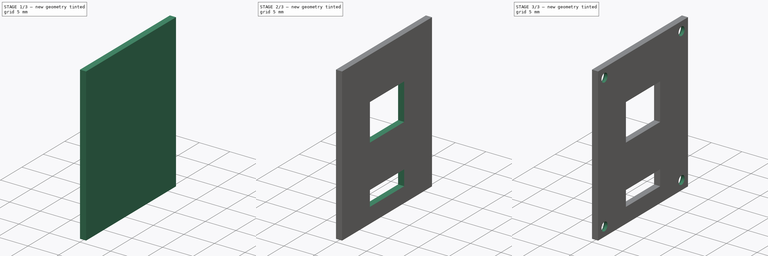
[diagram: build sequence overview — one tinted view per stage of 3, left to right]
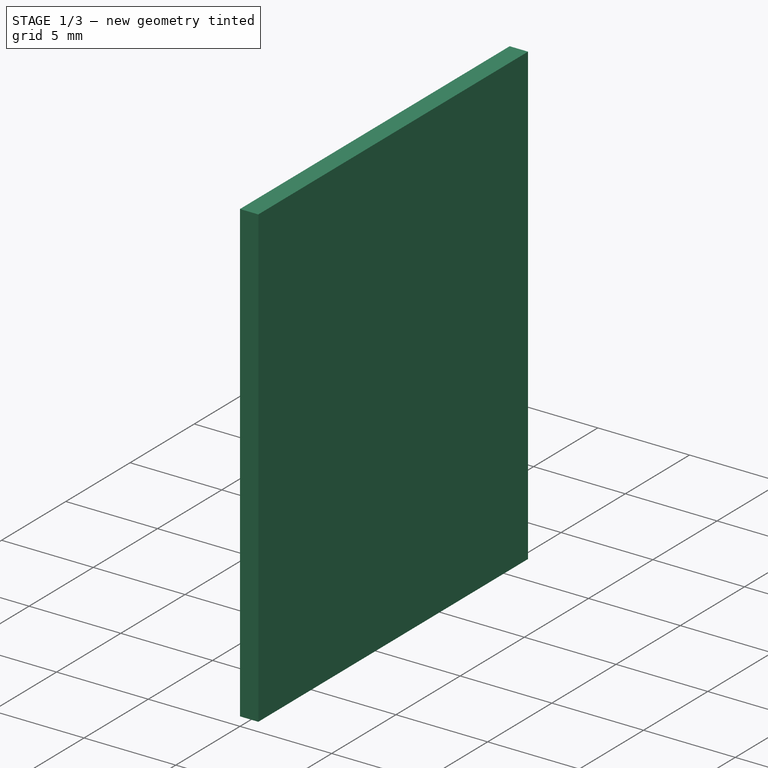
[diagram: stage 1 of 3 — iso view after this stage's code; geometry added in this stage tinted green]
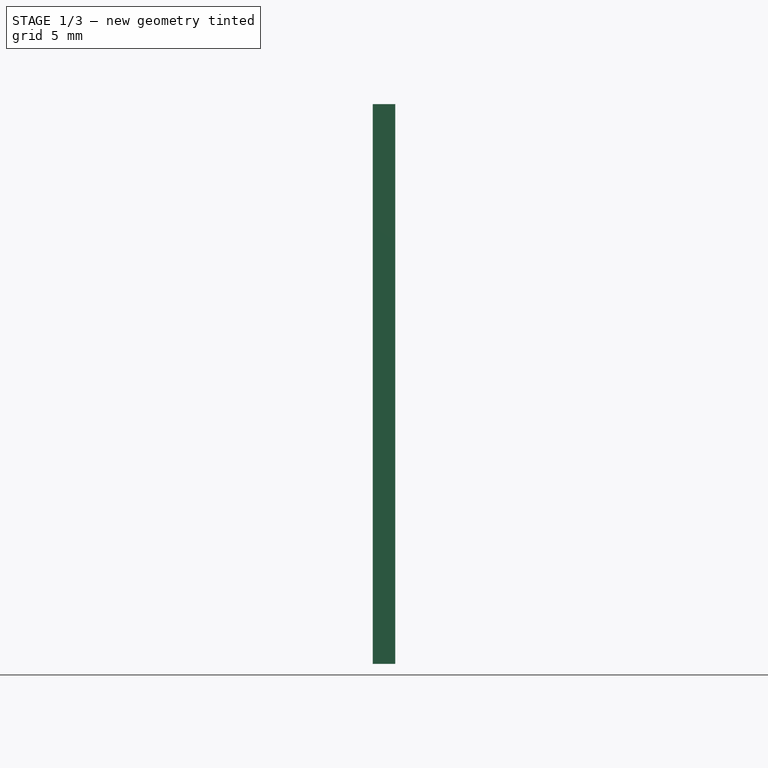
[diagram: stage 1 of 3 — front view after this stage's code; geometry added in this stage tinted green]
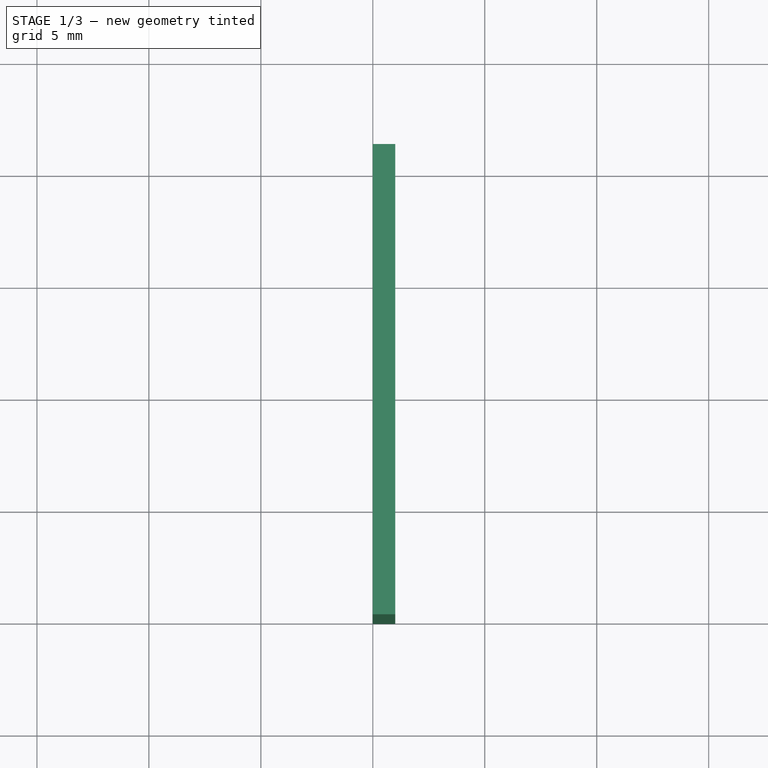
[diagram: stage 1 of 3 — top view after this stage's code; geometry added in this stage tinted green]
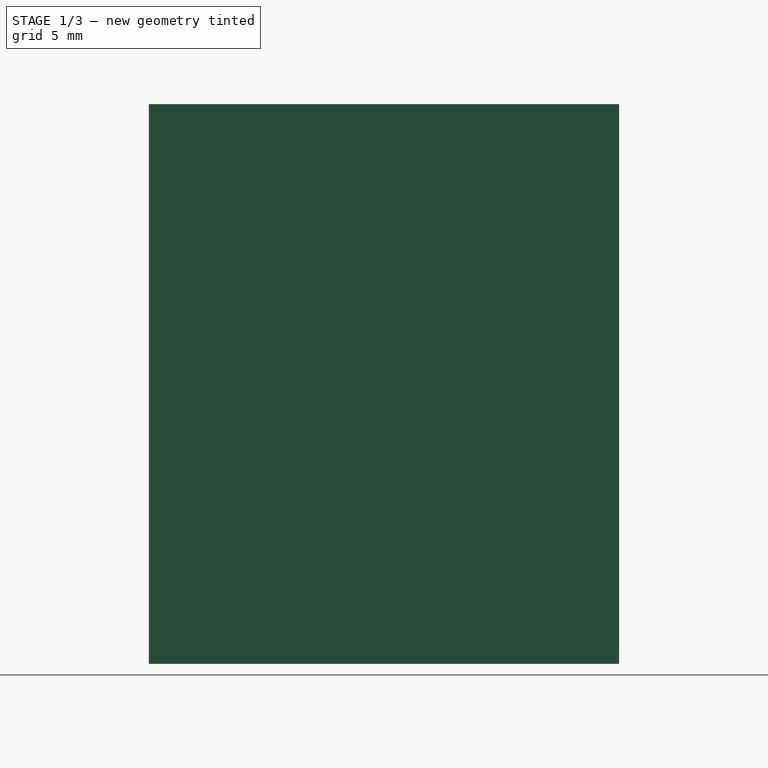
[diagram: stage 1 of 3 — right view after this stage's code; geometry added in this stage tinted green]
FCSTD DOCUMENT  (FreeCAD 0.19R)
Label: cover
License: All rights reserved
LicenseURL: http://en.wikipedia.org/wiki/All_rights_reserved
objects: Sketcher::SketchObject×4, PartDesign::Pocket×3, PartDesign::Pad×1, PartDesign::Chamfer×1, PartDesign::Body×1
note: 15 computed .brp shape members not serialized (recipe doc carries the construction recipe); baked Part::Feature solids carry a one-line shape summary decoded from their .brp

FEATURE [Sketcher::SketchObject] Sketch  label="base_pad_sketch"
  FullyConstrained = true
  MapMode = 5
  Support = -> [XY_Plane]
  sketch-geometry (4):
    g0: LineSegment StartX=0 StartY=0 StartZ=0 EndX=63.5 EndY=0 EndZ=0
    g1: LineSegment StartX=63.5 StartY=0 StartZ=0 EndX=63.5 EndY=21 EndZ=0
    g2: LineSegment StartX=63.5 StartY=21 StartZ=0 EndX=0 EndY=21 EndZ=0
    g3: LineSegment StartX=0 StartY=21 StartZ=0 EndX=0 EndY=0 EndZ=0
  constraints (11):
    c: Coincident(g0,g1)
    c: Coincident(g1,g2)
    c: Coincident(g2,g3)
    c: Coincident(g3,g0)
    c: Horizontal(g0)
    c: Horizontal(g2)
    c: Vertical(g1)
    c: Vertical(g3)
    c: Coincident(g0,g-1)
    c: Distance(g2) = 63.5
    c: Distance(g1) = 21
FEATURE [PartDesign::Pad] Pad  label="base_pad"
  Direction = (1,1,1)
  Length = 25
  Length2 = 100
  Profile = -> Sketch
  Type = 0
FEATURE [Sketcher::SketchObject] Sketch001  label="base_pocket_sketch"
  FullyConstrained = true
  MapMode = 5
  Placement = pos=(0,0,25) rot=(0,0,1;0rad)
  Support = -> [Pad]
  sketch-geometry (4):
    g0: LineSegment StartX=1 StartY=21 StartZ=0 EndX=64 EndY=21 EndZ=0
    g1: LineSegment StartX=64 StartY=21 StartZ=0 EndX=64 EndY=0 EndZ=0
    g2: LineSegment StartX=64 StartY=0 StartZ=0 EndX=1 EndY=0 EndZ=0
    g3: LineSegment StartX=1 StartY=0 StartZ=0 EndX=1 EndY=21 EndZ=0
  constraints (12):
    c: Coincident(g0,g1)
    c: Coincident(g1,g2)
    c: Coincident(g2,g3)
    c: Coincident(g3,g0)
    c: Horizontal(g0)
    c: Horizontal(g2)
    c: Vertical(g1)
    c: Vertical(g3)
    c: Distance(g0) = 63
    c: Distance(g1) = 21
    c: DistanceX(g-2,g2) = 1
    c: PointOnObject(g2,g-1)
FEATURE [PartDesign::Pocket] Pocket  label="base_pocket"
  BaseFeature = -> Pad
  Length = 25
  Length2 = 100
  Profile = -> Sketch001
  Type = 0
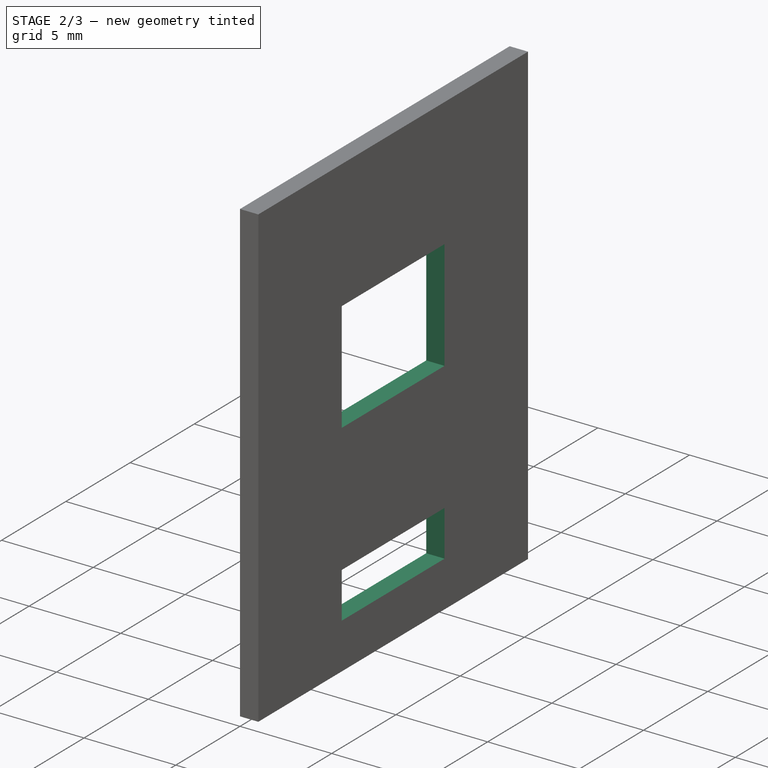
[diagram: stage 2 of 3 — iso view after this stage's code; geometry added in this stage tinted green]
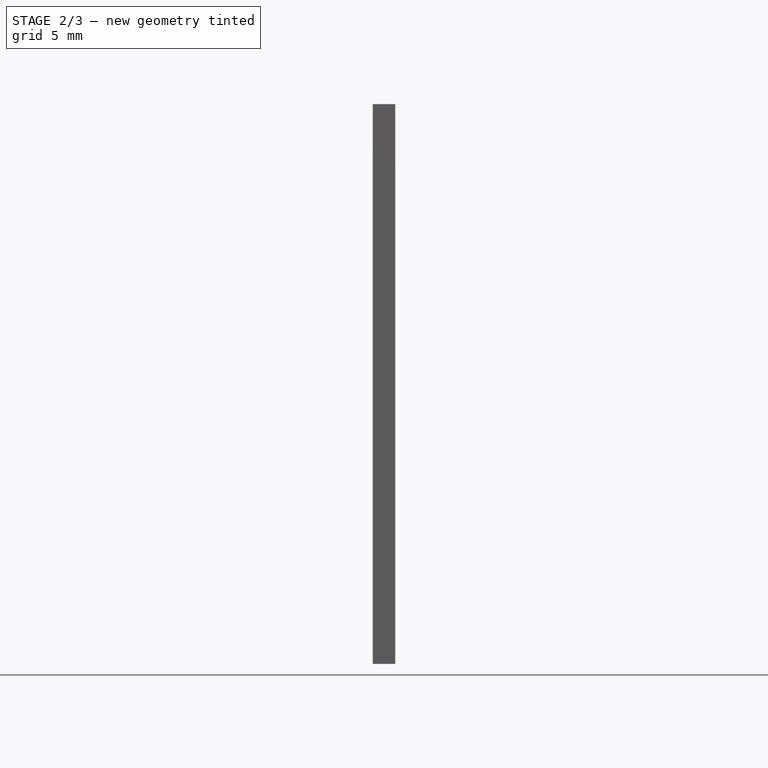
[diagram: stage 2 of 3 — front view after this stage's code; geometry added in this stage tinted green]
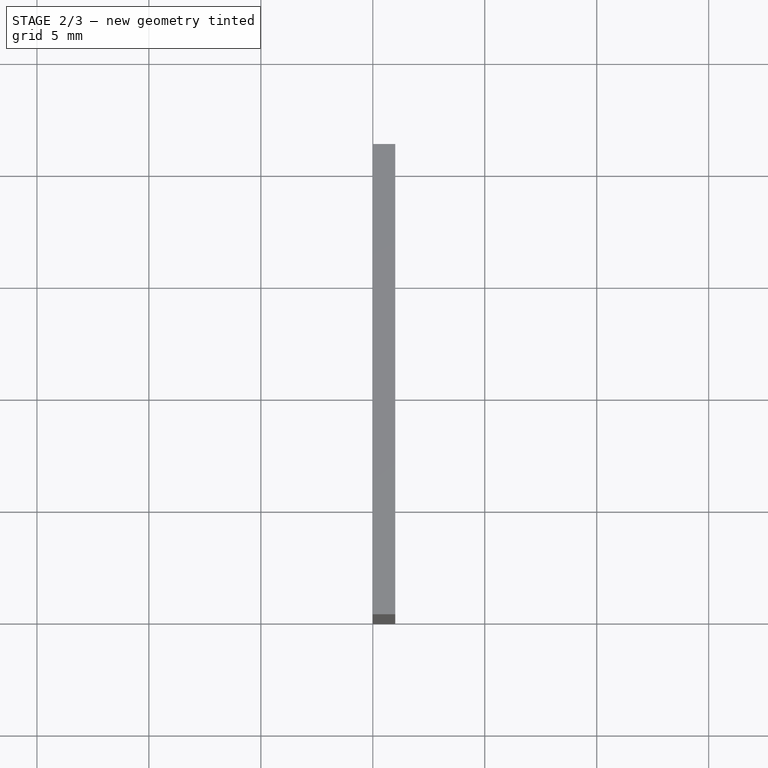
[diagram: stage 2 of 3 — top view after this stage's code; geometry added in this stage tinted green]
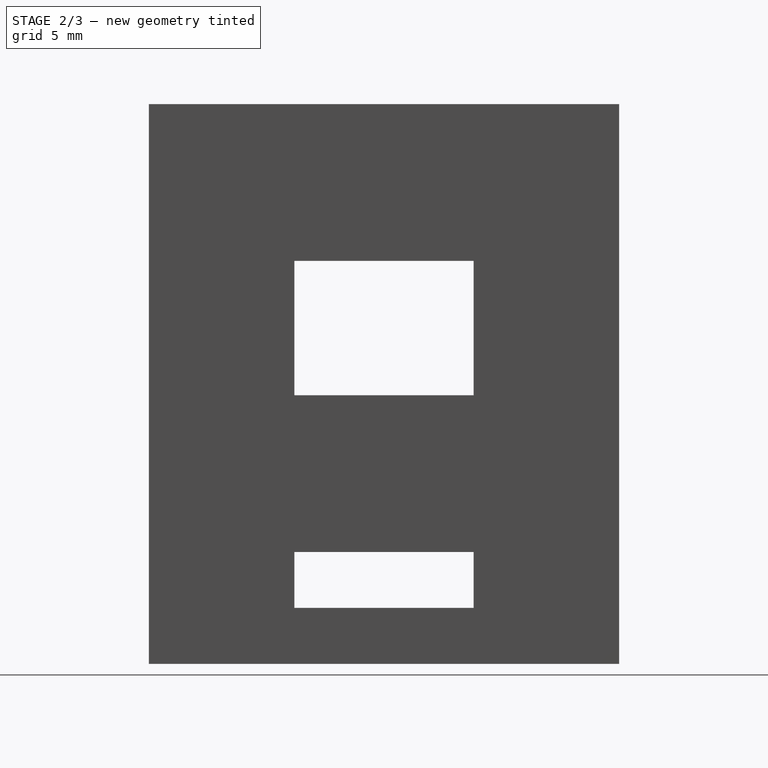
[diagram: stage 2 of 3 — right view after this stage's code; geometry added in this stage tinted green]
FEATURE [Sketcher::SketchObject] Sketch006  label="connectors_pocket_sketch"
  FullyConstrained = true
  MapMode = 5
  Placement = pos=(0,0,0) rot=(0.57735,-0.57735,-0.57735;2.0944rad)
  sketch-geometry (8):
    g0: LineSegment StartX=-14.5 StartY=18 StartZ=0 EndX=-6.5 EndY=18 EndZ=0
    g1: LineSegment StartX=-6.5 StartY=18 StartZ=0 EndX=-6.5 EndY=12 EndZ=0
    g2: LineSegment StartX=-6.5 StartY=12 StartZ=0 EndX=-14.5 EndY=12 EndZ=0
    g3: LineSegment StartX=-14.5 StartY=12 StartZ=0 EndX=-14.5 EndY=18 EndZ=0
    g4: LineSegment StartX=-14.5 StartY=5 StartZ=0 EndX=-6.5 EndY=5 EndZ=0
    g5: LineSegment StartX=-6.5 StartY=5 StartZ=0 EndX=-6.5 EndY=2.5 EndZ=0
    g6: LineSegment StartX=-6.5 StartY=2.5 StartZ=0 EndX=-14.5 EndY=2.5 EndZ=0
    g7: LineSegment StartX=-14.5 StartY=2.5 StartZ=0 EndX=-14.5 EndY=5 EndZ=0
  constraints (24):
    c: Coincident(g0,g1)
    c: Coincident(g1,g2)
    c: Coincident(g2,g3)
    c: Coincident(g3,g0)
    c: Horizontal(g0)
    c: Horizontal(g2)
    c: Vertical(g1)
    c: Vertical(g3)
    c: Coincident(g4,g5)
    c: Coincident(g5,g6)
    c: Coincident(g6,g7)
    c: Coincident(g7,g4)
    c: Horizontal(g4)
    c: Horizontal(g6)
    c: Vertical(g5)
    c: Vertical(g7)
    c: Distance(g0) = 8
    c: Distance(g4) = 8
    c: Distance(g1) = 6
    c: Distance(g5) = 2.5
    c: Distance(g1,g4) = 7
    c: DistanceX(g-2,g0) = -6.5
    c: DistanceX(g-2,g4) = -6.5
    c: DistanceY(g-1,g5) = 2.5
FEATURE [PartDesign::Pocket] Pocket004  label="connectors_pocket"
  BaseFeature = -> Pocket
  Length = 5
  Length2 = 100
  Profile = -> Sketch006
  Type = 0
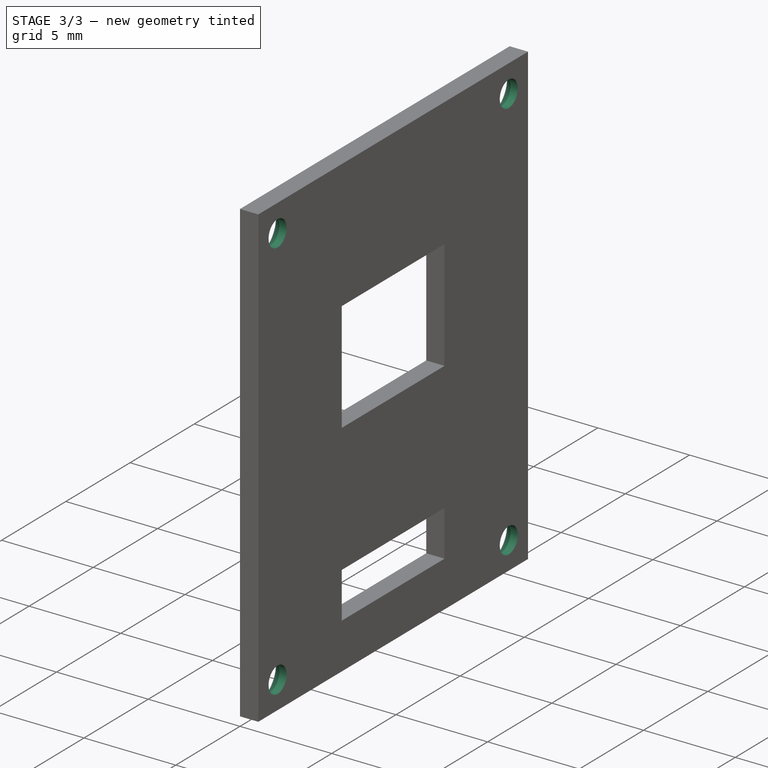
[diagram: stage 3 of 3 — iso view after this stage's code; geometry added in this stage tinted green]
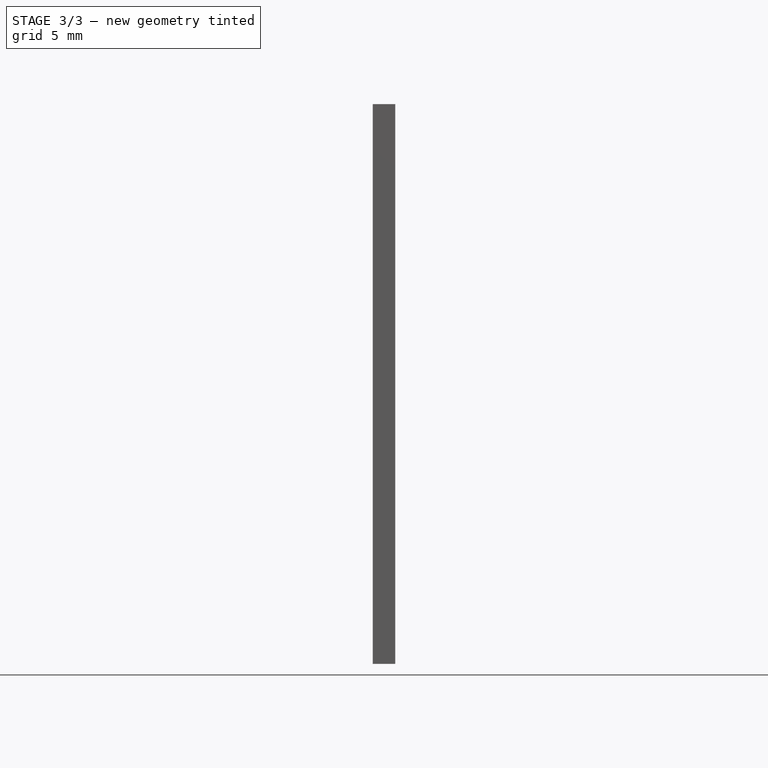
[diagram: stage 3 of 3 — front view after this stage's code; geometry added in this stage tinted green]
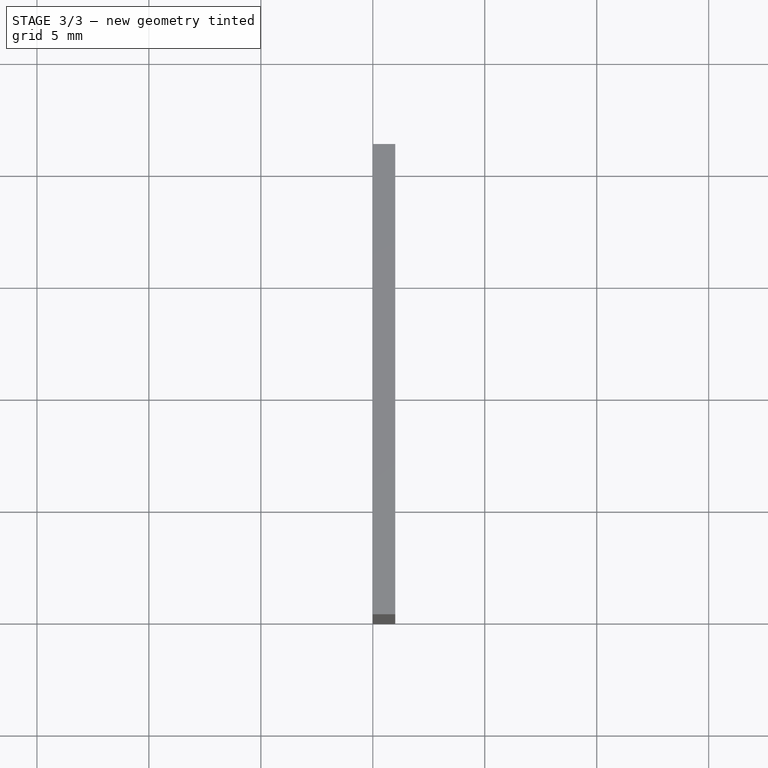
[diagram: stage 3 of 3 — top view after this stage's code; geometry added in this stage tinted green]
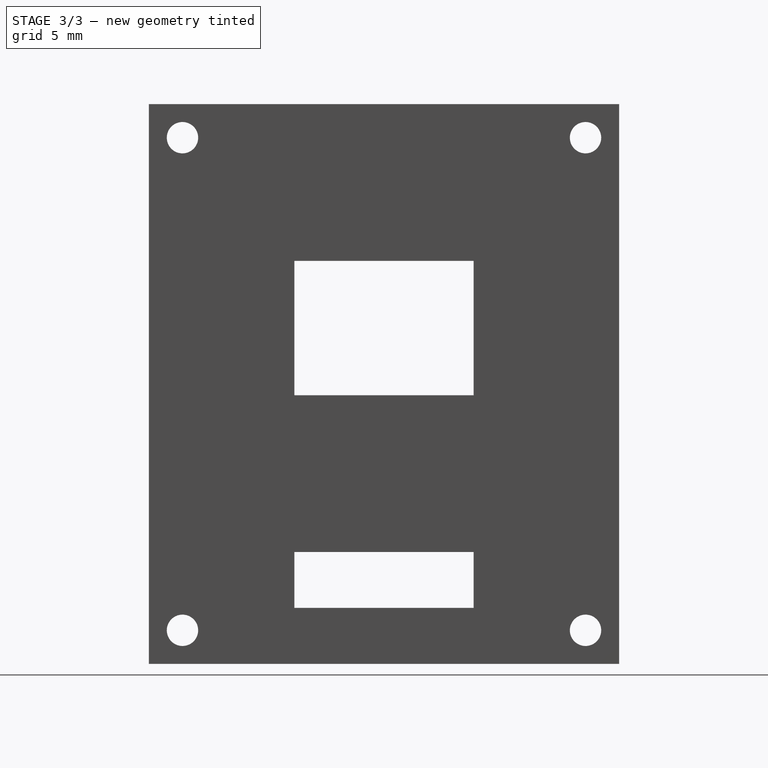
[diagram: stage 3 of 3 — right view after this stage's code; geometry added in this stage tinted green]
FEATURE [Sketcher::SketchObject] Sketch007  label="screw_pocket_sketch"
  FullyConstrained = true
  MapMode = 5
  Placement = pos=(0,0,0) rot=(0.57735,-0.57735,-0.57735;2.0944rad)
  Support = -> [Pocket004]
  sketch-geometry (4):
    g0: Circle CenterX=-19.5 CenterY=1.5 CenterZ=0 NormalX=0 NormalY=0 NormalZ=1 AngleXU=0 Radius=0.7
    g1: Circle CenterX=-1.5 CenterY=1.5 CenterZ=0 NormalX=0 NormalY=0 NormalZ=1 AngleXU=0 Radius=0.7
    g2: Circle CenterX=-1.5 CenterY=23.5 CenterZ=0 NormalX=0 NormalY=0 NormalZ=1 AngleXU=0 Radius=0.7
    g3: Circle CenterX=-19.5 CenterY=23.5 CenterZ=0 NormalX=0 NormalY=0 NormalZ=1 AngleXU=0 Radius=0.7
  constraints (12):
    c: Equal(g3,g2)
    c: Equal(g2,g1)
    c: Equal(g1,g0)
    c: Radius(g2) = 0.7
    c: Distance(g0,g1) = 18
    c: Distance(g3,g2) = 18
    c: Distance(g3,g0) = 22
    c: Distance(g2,g1) = 22
    c: DistanceY(g-1,g1) = 1.5
    c: DistanceX(g-2,g1) = -1.5
    c: DistanceY(g-1,g0) = 1.5
    c: DistanceX(g-2,g2) = -1.5
FEATURE [PartDesign::Pocket] Pocket005  label="screw_pocket"
  BaseFeature = -> Pocket004
  Length = 5
  Length2 = 100
  Profile = -> Sketch007
  Type = 0
FEATURE [PartDesign::Chamfer] Chamfer  label="screw_pocket_chamfer"
  Angle = 45
  Base = -> Pocket005 [Edge36,Edge31,Edge25,Edge26]
  BaseFeature = -> Pocket005
  ChamferType = 0
  FlipDirection = false
  Size = 0.6
  Size2 = 1
  SupportTransform = false
FEATURE [PartDesign::Body] Body  label="case_cover"
  Group = -> [Sketch,Pad,Sketch001,Pocket,Sketch006,Pocket004,Sketch007,Pocket005,Chamfer]
  Origin = -> Origin
  Tip = -> Chamfer
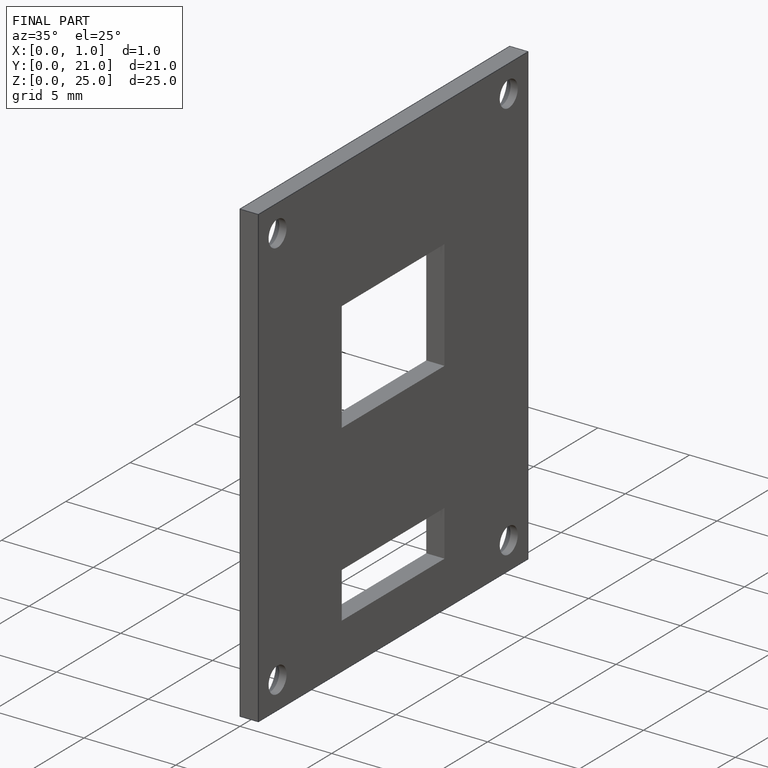
[diagram: finished part — iso view with bounding-box wireframe]
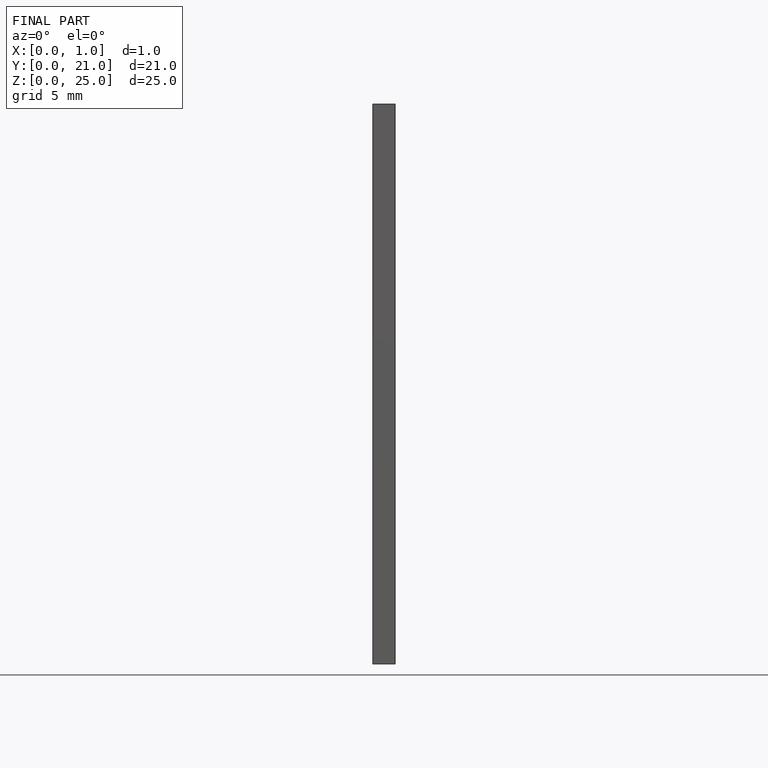
[diagram: finished part — front view with bounding-box wireframe]
